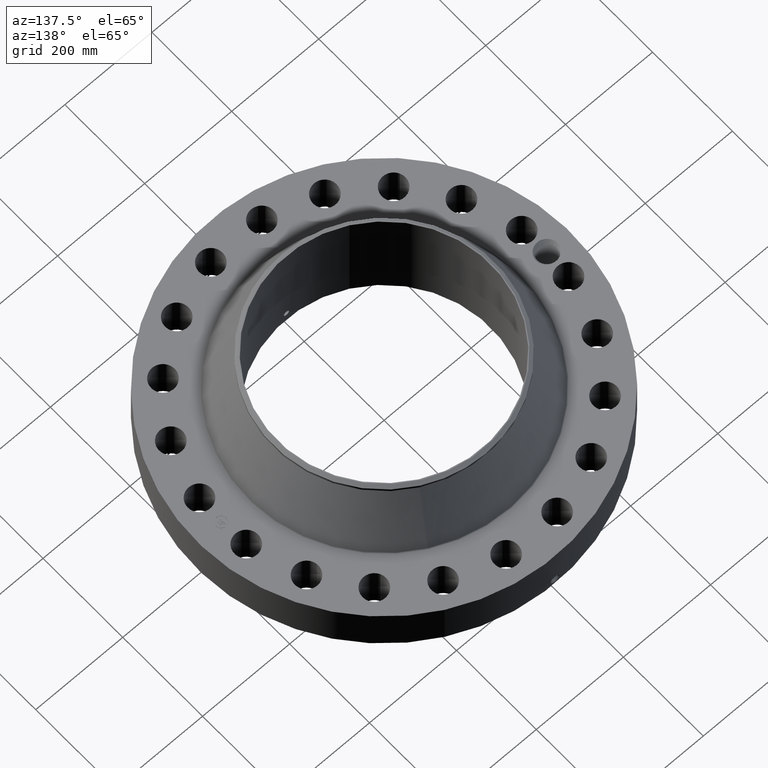
[diagram: clean part render]
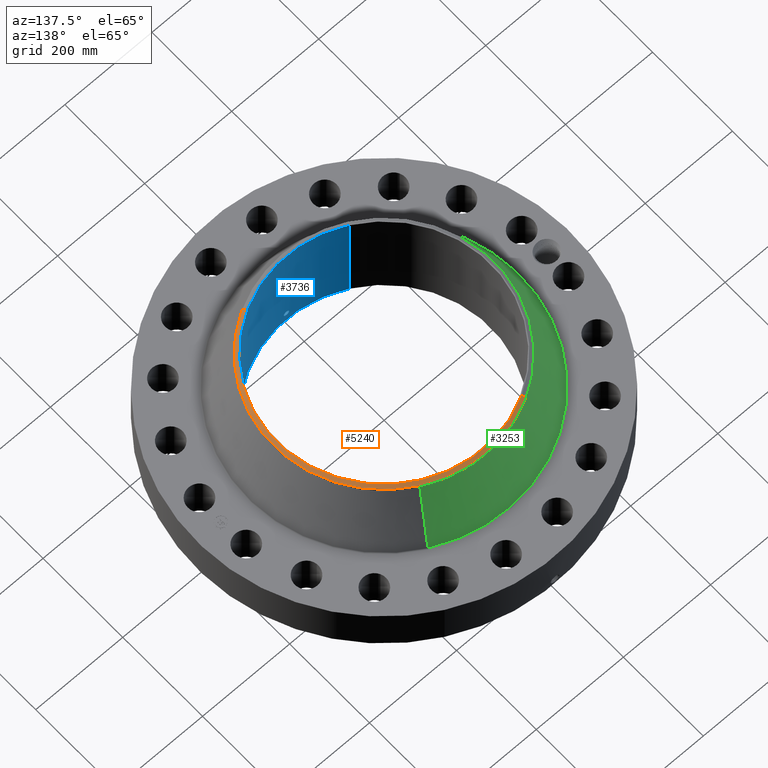
[diagram: same view with three faces highlighted in distinct colors, each labeled with its STEP entity id]
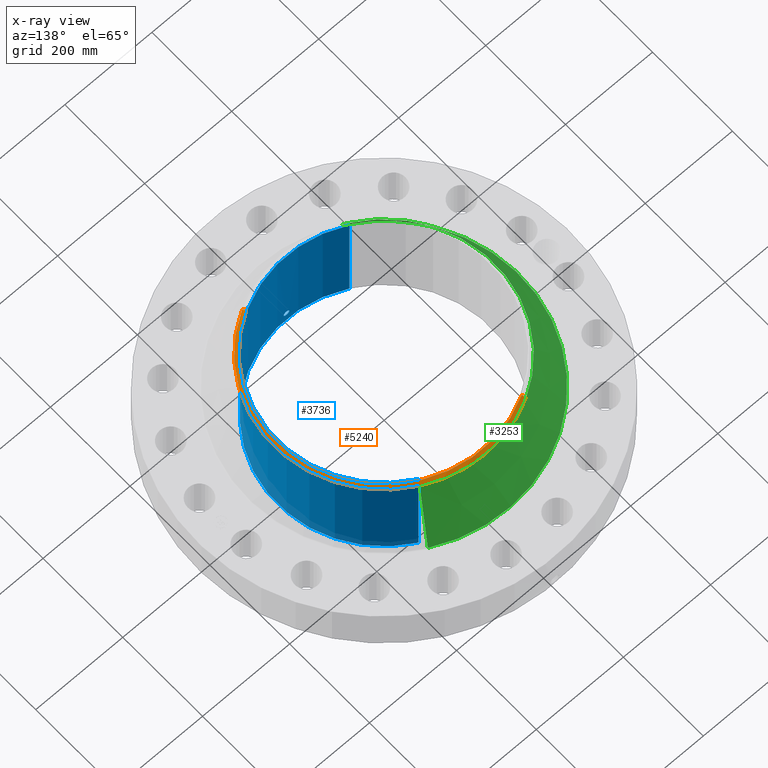
[diagram: x-ray of the same camera — body ghosted, the three highlighted faces saturated]
A machine part, auxiliary view with three faces highlighted in distinct colors.
The next image is the same camera in x-ray (body ghosted, the three faces saturated) — at least one of them is partly hidden behind the body in this view.
Their STEP definitions:

[orange] entity #5240 — the highlighted conical surface has half-angle 52.5 deg.
#4043=AXIS2_PLACEMENT_3D('Circle Axis2P3D',#4041,#4042,$) ;
#4070=AXIS2_PLACEMENT_3D('Circle Axis2P3D',#4068,#4069,$) ;
#4856=AXIS2_PLACEMENT_3D('Circle Axis2P3D',#4854,#4855,$) ;
#5221=AXIS2_PLACEMENT_3D('Cone Axis2P3D',#5218,#5219,#5220) ;
#4038=CARTESIAN_POINT('Vertex',(4.79425538606,8.77582561894,9.77267182742)) ;
#4041=CARTESIAN_POINT('Axis2P3D Location',(0.,0.,9.77267182742)) ;
#4045=CARTESIAN_POINT('Vertex',(4.79425538606,-8.77582561894,9.77267182742)) ;
#4065=CARTESIAN_POINT('Vertex',(-4.79425538606,8.77582561894,9.77267182742)) ;
#4068=CARTESIAN_POINT('Axis2P3D Location',(0.,0.,9.77267182742)) ;
#4854=CARTESIAN_POINT('Axis2P3D Location',(0.,0.,10.)) ;
#4858=CARTESIAN_POINT('Vertex',(4.65222085149,-8.51583314735,10.)) ;
#4860=CARTESIAN_POINT('Vertex',(-4.65222085149,8.51583314735,10.)) ;
#5218=CARTESIAN_POINT('Axis2P3D Location',(0.,0.,10.)) ;
#5223=CARTESIAN_POINT('Line Origine',(-4.72323811878,8.64582938315,9.88633591373)) ;
#5228=CARTESIAN_POINT('Line Origine',(4.72323811878,-8.64582938315,9.88633591373)) ;
#4042=DIRECTION('Axis2P3D Direction',(0.,0.,-0.0393700787402)) ;
#4069=DIRECTION('Axis2P3D Direction',(0.,0.,-0.0393700787402)) ;
#4855=DIRECTION('Axis2P3D Direction',(0.,0.,-0.0393700787402)) ;
#5219=DIRECTION('Axis2P3D Direction',(-0.,-0.,-0.0393700787402)) ;
#5220=DIRECTION('Axis2P3D XDirection',(0.0188750212049,-0.0345504945626,0.)) ;
#5224=DIRECTION('Vector Direction',(-0.014974561121,0.02741075027,-0.023966985394)) ;
#5229=DIRECTION('Vector Direction',(0.014974561121,-0.02741075027,-0.023966985394)) ;
#5225=VECTOR('Line Direction',#5224,0.0393700787402) ;
#5230=VECTOR('Line Direction',#5229,0.0393700787402) ;
#5234=ORIENTED_EDGE('',*,*,#5227,.F.) ;
#5235=ORIENTED_EDGE('',*,*,#4862,.F.) ;
#5236=ORIENTED_EDGE('',*,*,#5232,.T.) ;
#5237=ORIENTED_EDGE('',*,*,#4047,.T.) ;
#5238=ORIENTED_EDGE('',*,*,#4072,.F.) ;
#5240=ADVANCED_FACE('PartBody',(#5239),#5222,.T.) ;
#4044=CIRCLE('generated circle',#4043,10.) ;
#4071=CIRCLE('generated circle',#4070,10.) ;
#4857=CIRCLE('generated circle',#4856,9.70374015752) ;
#5222=CONICAL_SURFACE('Cone',#5221,9.70374015752,0.916297857297) ;
#4047=EDGE_CURVE('',#4046,#4039,#4044,.F.) ;
#4072=EDGE_CURVE('',#4066,#4039,#4071,.T.) ;
#4862=EDGE_CURVE('',#4859,#4861,#4857,.F.) ;
#5227=EDGE_CURVE('',#4861,#4066,#5226,.T.) ;
#5232=EDGE_CURVE('',#4859,#4046,#5231,.T.) ;
#5233=EDGE_LOOP('',(#5234,#5235,#5236,#5237,#5238)) ;
#5239=FACE_OUTER_BOUND('',#5233,.T.) ;
#5226=LINE('Line',#5223,#5225) ;
#5231=LINE('Line',#5228,#5230) ;
#4039=VERTEX_POINT('',#4038) ;
#4046=VERTEX_POINT('',#4045) ;
#4066=VERTEX_POINT('',#4065) ;
#4859=VERTEX_POINT('',#4858) ;
#4861=VERTEX_POINT('',#4860) ;

[blue] entity #3736 — the highlighted cylindrical surface (partial cylindrical patch) has radius 244.475 mm, axis along (0, 0, -1).
#2912=AXIS2_PLACEMENT_3D('Circle Axis2P3D',#2910,#2911,$) ;
#3667=AXIS2_PLACEMENT_3D('Cylinder Axis2P3D',#3664,#3665,#3666) ;
#3671=AXIS2_PLACEMENT_3D('Circle Axis2P3D',#3669,#3670,$) ;
#2910=CARTESIAN_POINT('Axis2P3D Location',(0.,0.,0.)) ;
#2914=CARTESIAN_POINT('Vertex',(4.61447080908,8.44673215823,-5.93051417249E-014)) ;
#2916=CARTESIAN_POINT('Vertex',(-4.61447080908,-8.44673215823,-5.93051417249E-014)) ;
#3664=CARTESIAN_POINT('Axis2P3D Location',(0.,0.,5.00000000002)) ;
#3669=CARTESIAN_POINT('Axis2P3D Location',(0.,0.,10.)) ;
#3673=CARTESIAN_POINT('Vertex',(4.61447080908,8.44673215823,10.)) ;
#3675=CARTESIAN_POINT('Vertex',(-4.61447080908,-8.44673215823,10.)) ;
#3678=CARTESIAN_POINT('Line Origine',(4.61447080908,8.44673215823,5.00000000002)) ;
#3683=CARTESIAN_POINT('Line Origine',(-4.61447080908,-8.44673215823,5.00000000002)) ;
#3695=CARTESIAN_POINT('Control Point',(0.219395640473,-9.62249918439,0.820143615352)) ;
#3696=CARTESIAN_POINT('Control Point',(0.194442916871,-9.62306811339,0.774467961175)) ;
#3697=CARTESIAN_POINT('Control Point',(0.157604791849,-9.62382710762,0.735287784751)) ;
#3698=CARTESIAN_POINT('Control Point',(0.11110677287,-9.62456527477,0.706756392379)) ;
#3699=CARTESIAN_POINT('Control Point',(0.0336714944592,-9.62515257644,0.684117146094)) ;
#3700=CARTESIAN_POINT('Control Point',(-0.0446733582133,-9.6249496081,0.691943940255)) ;
#3701=CARTESIAN_POINT('Control Point',(-0.0703037610759,-9.62479204385,0.697956966158)) ;
#3702=CARTESIAN_POINT('Control Point',(-0.143960694982,-9.62409577409,0.725790478115)) ;
#3703=CARTESIAN_POINT('Control Point',(-0.203248804324,-9.62295930718,0.780507803178)) ;
#3704=CARTESIAN_POINT('Control Point',(-0.232213125724,-9.62221396751,0.826748903217)) ;
#3705=CARTESIAN_POINT('Control Point',(-0.255841100089,-9.62160132498,0.904894882164)) ;
#3706=CARTESIAN_POINT('Control Point',(-0.248281734316,-9.62179716896,0.984257576256)) ;
#3707=CARTESIAN_POINT('Control Point',(-0.242047982632,-9.62196101179,1.01081839004)) ;
#3708=CARTESIAN_POINT('Control Point',(-0.232314831587,-9.62220462327,1.03620796395)) ;
#3709=CARTESIAN_POINT('Control Point',(-0.219395640473,-9.62249918439,1.05985638466)) ;
#3710=CARTESIAN_POINT('Vertex',(0.219395640473,-9.62249918439,0.820143615352)) ;
#3712=CARTESIAN_POINT('Vertex',(-0.219395640473,-9.62249918439,1.05985638466)) ;
#3716=CARTESIAN_POINT('Control Point',(-0.219395640473,-9.62249918439,1.05985638466)) ;
#3717=CARTESIAN_POINT('Control Point',(-0.194442916887,-9.62306811339,1.1055320388)) ;
#3718=CARTESIAN_POINT('Control Point',(-0.157604791896,-9.62382710762,1.14471221521)) ;
#3719=CARTESIAN_POINT('Control Point',(-0.11110677281,-9.62456527477,1.17324360764)) ;
#3720=CARTESIAN_POINT('Control Point',(-0.0336714944355,-9.62515257644,1.19588285391)) ;
#3721=CARTESIAN_POINT('Control Point',(0.0446733582016,-9.6249496081,1.18805605975)) ;
#3722=CARTESIAN_POINT('Control Point',(0.0703037610741,-9.62479204385,1.18204303385)) ;
#3723=CARTESIAN_POINT('Control Point',(0.143960694974,-9.62409577409,1.1542095219)) ;
#3724=CARTESIAN_POINT('Control Point',(0.203248804313,-9.62295930718,1.09949219684)) ;
#3725=CARTESIAN_POINT('Control Point',(0.232213125724,-9.62221396751,1.05325109679)) ;
#3726=CARTESIAN_POINT('Control Point',(0.255841100075,-9.62160132498,0.975105117885)) ;
#3727=CARTESIAN_POINT('Control Point',(0.248281734325,-9.62179716896,0.895742423838)) ;
#3728=CARTESIAN_POINT('Control Point',(0.242047982603,-9.62196101179,0.869181609897)) ;
#3729=CARTESIAN_POINT('Control Point',(0.232314831568,-9.62220462327,0.843792036025)) ;
#3730=CARTESIAN_POINT('Control Point',(0.219395640473,-9.62249918439,0.820143615352)) ;
#2911=DIRECTION('Axis2P3D Direction',(0.,0.,-0.0393700787402)) ;
#3665=DIRECTION('Axis2P3D Direction',(0.,0.,-0.0393700787402)) ;
#3666=DIRECTION('Axis2P3D XDirection',(-0.0188750212049,-0.0345504945626,0.)) ;
#3670=DIRECTION('Axis2P3D Direction',(0.,0.,-0.0393700787402)) ;
#3679=DIRECTION('Vector Direction',(0.,0.,-0.0393700787402)) ;
#3684=DIRECTION('Vector Direction',(0.,0.,-0.0393700787402)) ;
#3680=VECTOR('Line Direction',#3679,0.0393700787402) ;
#3685=VECTOR('Line Direction',#3684,0.0393700787402) ;
#3689=ORIENTED_EDGE('',*,*,#3677,.F.) ;
#3690=ORIENTED_EDGE('',*,*,#3682,.T.) ;
#3691=ORIENTED_EDGE('',*,*,#2918,.T.) ;
#3692=ORIENTED_EDGE('',*,*,#3687,.F.) ;
#3733=ORIENTED_EDGE('',*,*,#3714,.F.) ;
#3734=ORIENTED_EDGE('',*,*,#3731,.F.) ;
#3735=FACE_BOUND('',#3732,.T.) ;
#3736=ADVANCED_FACE('PartBody',(#3693,#3735),#3668,.F.) ;
#3694=B_SPLINE_CURVE_WITH_KNOTS('',5,(#3695,#3696,#3697,#3698,#3699,#3700,#3701,#3702,#3703,#3704,#3705,#3706,#3707,#3708,#3709),.UNSPECIFIED.,.F.,.U.,(6,3,3,3,6),(0.,9.3484897201,14.0229242171,23.3729649447,28.2131149515),.UNSPECIFIED.) ;
#3715=B_SPLINE_CURVE_WITH_KNOTS('',5,(#3716,#3717,#3718,#3719,#3720,#3721,#3722,#3723,#3724,#3725,#3726,#3727,#3728,#3729,#3730),.UNSPECIFIED.,.F.,.U.,(6,3,3,3,6),(0.,9.34848971417,14.0229242107,23.3729649375,28.2131149372),.UNSPECIFIED.) ;
#2913=CIRCLE('generated circle',#2912,9.62500000004) ;
#3672=CIRCLE('generated circle',#3671,9.62500000004) ;
#3668=CYLINDRICAL_SURFACE('generated cylinder',#3667,9.62500000004) ;
#2918=EDGE_CURVE('',#2915,#2917,#2913,.T.) ;
#3677=EDGE_CURVE('',#3674,#3676,#3672,.T.) ;
#3682=EDGE_CURVE('',#3674,#2915,#3681,.T.) ;
#3687=EDGE_CURVE('',#3676,#2917,#3686,.T.) ;
#3714=EDGE_CURVE('',#3711,#3713,#3694,.T.) ;
#3731=EDGE_CURVE('',#3713,#3711,#3715,.T.) ;
#3688=EDGE_LOOP('',(#3689,#3690,#3691,#3692)) ;
#3732=EDGE_LOOP('',(#3733,#3734)) ;
#3693=FACE_OUTER_BOUND('',#3688,.T.) ;
#3681=LINE('Line',#3678,#3680) ;
#3686=LINE('Line',#3683,#3685) ;
#2915=VERTEX_POINT('',#2914) ;
#2917=VERTEX_POINT('',#2916) ;
#3674=VERTEX_POINT('',#3673) ;
#3676=VERTEX_POINT('',#3675) ;
#3711=VERTEX_POINT('',#3710) ;
#3713=VERTEX_POINT('',#3712) ;

[green] entity #3253 — the highlighted conical surface has half-angle 24.072 deg.
#2557=AXIS2_PLACEMENT_3D('Circle Axis2P3D',#2555,#2556,$) ;
#3214=AXIS2_PLACEMENT_3D('Cone Axis2P3D',#3211,#3212,#3213) ;
#3244=AXIS2_PLACEMENT_3D('Circle Axis2P3D',#3242,#3243,$) ;
#2533=CARTESIAN_POINT('Vertex',(5.85774467674,10.7225297077,4.57105316465)) ;
#2540=CARTESIAN_POINT('Vertex',(-5.85774467674,-10.7225297077,4.57105316465)) ;
#2555=CARTESIAN_POINT('Axis2P3D Location',(0.,0.,4.57105316465)) ;
#3211=CARTESIAN_POINT('Axis2P3D Location',(0.,0.,9.53645135498)) ;
#3216=CARTESIAN_POINT('Line Origine',(5.3260000314,9.74917766332,7.05375225982)) ;
#3220=CARTESIAN_POINT('Vertex',(4.79425538606,8.77582561894,9.53645135498)) ;
#3227=CARTESIAN_POINT('Vertex',(-4.79425538606,-8.77582561894,9.53645135498)) ;
#3230=CARTESIAN_POINT('Line Origine',(-5.3260000314,-9.74917766332,7.05375225982)) ;
#3242=CARTESIAN_POINT('Axis2P3D Location',(0.,0.,9.53645135498)) ;
#2556=DIRECTION('Axis2P3D Direction',(0.,0.,-0.0393700787402)) ;
#3212=DIRECTION('Axis2P3D Direction',(0.,0.,-0.0393700787402)) ;
#3213=DIRECTION('Axis2P3D XDirection',(-0.0188750212049,-0.0345504945626,0.)) ;
#3217=DIRECTION('Vector Direction',(0.00769893796181,0.0140928114093,-0.0359461002175)) ;
#3231=DIRECTION('Vector Direction',(-0.00769893796181,-0.0140928114093,-0.0359461002175)) ;
#3243=DIRECTION('Axis2P3D Direction',(0.,0.,-0.0393700787402)) ;
#3218=VECTOR('Line Direction',#3217,0.0393700787402) ;
#3232=VECTOR('Line Direction',#3231,0.0393700787402) ;
#3248=ORIENTED_EDGE('',*,*,#2559,.F.) ;
#3249=ORIENTED_EDGE('',*,*,#3234,.T.) ;
#3250=ORIENTED_EDGE('',*,*,#3246,.T.) ;
#3251=ORIENTED_EDGE('',*,*,#3222,.F.) ;
#3253=ADVANCED_FACE('PartBody',(#3252),#3215,.T.) ;
#2558=CIRCLE('generated circle',#2557,12.2182574875) ;
#3245=CIRCLE('generated circle',#3244,10.) ;
#3215=CONICAL_SURFACE('Cone',#3214,10.,0.420142204951) ;
#2559=EDGE_CURVE('',#2541,#2534,#2558,.T.) ;
#3222=EDGE_CURVE('',#2534,#3221,#3219,.F.) ;
#3234=EDGE_CURVE('',#2541,#3228,#3233,.F.) ;
#3246=EDGE_CURVE('',#3228,#3221,#3245,.T.) ;
#3247=EDGE_LOOP('',(#3248,#3249,#3250,#3251)) ;
#3252=FACE_OUTER_BOUND('',#3247,.T.) ;
#3219=LINE('Line',#3216,#3218) ;
#3233=LINE('Line',#3230,#3232) ;
#2534=VERTEX_POINT('',#2533) ;
#2541=VERTEX_POINT('',#2540) ;
#3221=VERTEX_POINT('',#3220) ;
#3228=VERTEX_POINT('',#3227) ;